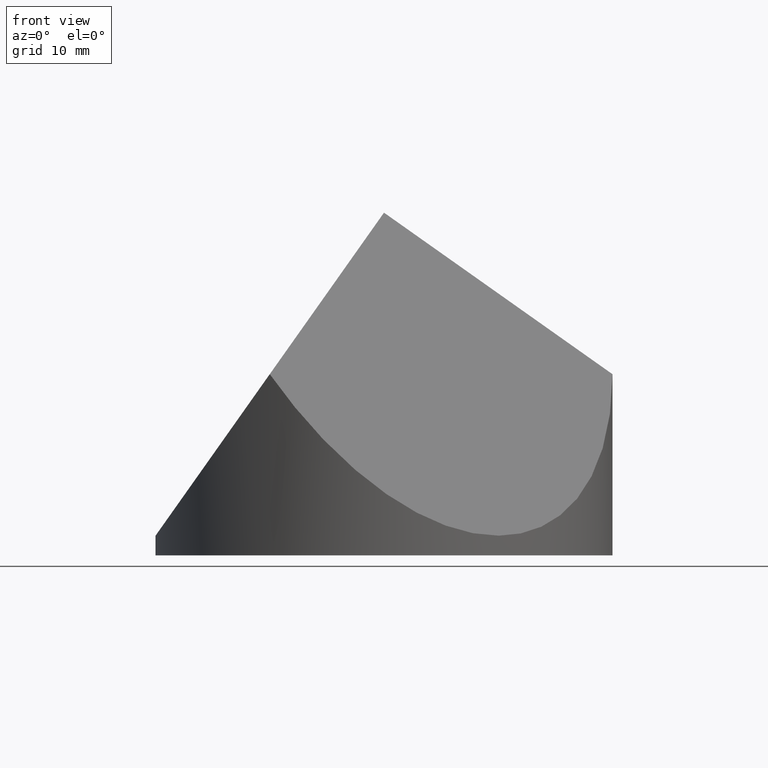
[diagram: clean part render]
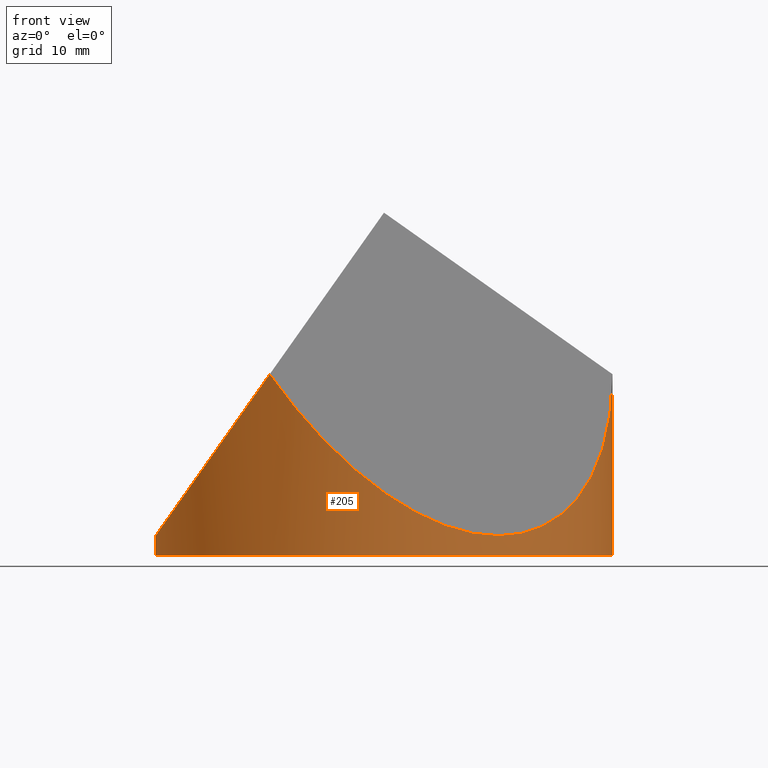
[diagram: same view with one face highlighted and labeled with its STEP entity id]
A machine part, front view. The second image highlights one B-rep face of the part: STEP entity #205.
In plain terms, the highlighted cylindrical surface (partial cylindrical patch) has radius 19 mm, axis along (-0, -0, -1).
Its self-contained STEP definition (entity closure, byte-faithful):
#11 = EDGE_CURVE ( 'NONE', #134, #50, #34, .T. ) ;
#15 = CARTESIAN_POINT ( 'NONE',  ( 19.00000000000001400, 5.354801039138735000E-032, 15.06776144854982000 ) ) ;
#21 = ORIENTED_EDGE ( 'NONE', *, *, #256, .T. ) ;
#24 = CARTESIAN_POINT ( 'NONE',  ( -19.00000000000000400, -6.954482671904324700, 1.635522897099544300 ) ) ;
#27 = VECTOR ( 'NONE', #130, 1000.000000000000000 ) ;
#34 = LINE ( 'NONE', #189, #110 ) ;
#35 = CARTESIAN_POINT ( 'NONE',  ( -19.00000000000000000, 0.0000000000000000000, 0.0000000000000000000 ) ) ;
#46 = CARTESIAN_POINT ( 'NONE',  ( -9.500000000000016000, -16.45448267190433000, 15.06776144854975300 ) ) ;
#50 = VERTEX_POINT ( 'NONE', #219 ) ;
#60 = DIRECTION ( 'NONE',  ( -0.0000000000000000000, -0.0000000000000000000, -1.000000000000000000 ) ) ;
#76 = CARTESIAN_POINT ( 'NONE',  ( -15.52275866404783900, -12.97724133595215600, 6.552063436623012800 ) ) ;
#79 =( BOUNDED_CURVE ( )  B_SPLINE_CURVE ( 3, ( #199, #294, #100, #169 ),
 .UNSPECIFIED., .F., .F. ) 
 B_SPLINE_CURVE_WITH_KNOTS ( ( 4, 4 ),
 ( 5.235987755982986200, 7.330382858376182800 ),
 .UNSPECIFIED. ) 
 CURVE ( )  GEOMETRIC_REPRESENTATION_ITEM ( )  RATIONAL_B_SPLINE_CURVE ( ( 1.000000000000000000, 0.6666666666666663000, 0.6666666666666663000, 1.000000000000000000 ) ) 
 REPRESENTATION_ITEM ( '' )  );
#84 = ORIENTED_EDGE ( 'NONE', *, *, #282, .T. ) ;
#89 = CARTESIAN_POINT ( 'NONE',  ( -19.00000000000000000, 0.0000000000000000000, 1.635522897099547900 ) ) ;
#95 = VERTEX_POINT ( 'NONE', #89 ) ;
#97 = EDGE_CURVE ( 'NONE', #95, #123, #269, .T. ) ;
#100 = CARTESIAN_POINT ( 'NONE',  ( 4.749999999999993800, -24.68172400785652300, -5.080596378625580600 ) ) ;
#103 = ORIENTED_EDGE ( 'NONE', *, *, #97, .T. ) ;
#106 = AXIS2_PLACEMENT_3D ( 'NONE', #196, #172, #200 ) ;
#110 = VECTOR ( 'NONE', #60, 1000.000000000000000 ) ;
#116 = CARTESIAN_POINT ( 'NONE',  ( -19.00000000000000000, 0.0000000000000000000, 1.635522897099547900 ) ) ;
#123 = VERTEX_POINT ( 'NONE', #35 ) ;
#127 = CIRCLE ( 'NONE', #106, 19.00000000000000000 ) ;
#130 = DIRECTION ( 'NONE',  ( -0.0000000000000000000, -0.0000000000000000000, -1.000000000000000000 ) ) ;
#134 = VERTEX_POINT ( 'NONE', #15 ) ;
#145 = DIRECTION ( 'NONE',  ( -1.000000000000000000, 0.0000000000000000000, 0.0000000000000000000 ) ) ;
#169 = CARTESIAN_POINT ( 'NONE',  ( -9.500000000000016000, -16.45448267190433000, 15.06776144854975300 ) ) ;
#172 = DIRECTION ( 'NONE',  ( 0.0000000000000000000, 0.0000000000000000000, 1.000000000000000000 ) ) ;
#184 =( BOUNDED_CURVE ( )  B_SPLINE_CURVE ( 3, ( #46, #76, #24, #116 ),
 .UNSPECIFIED., .F., .T. ) 
 B_SPLINE_CURVE_WITH_KNOTS ( ( 4, 4 ),
 ( 5.235987755982989700, 6.283185307179586200 ),
 .UNSPECIFIED. ) 
 CURVE ( )  GEOMETRIC_REPRESENTATION_ITEM ( )  RATIONAL_B_SPLINE_CURVE ( ( 1.000000000000000000, 0.9106836025229592100, 0.9106836025229592100, 1.000000000000000000 ) ) 
 REPRESENTATION_ITEM ( '' )  );
#189 = CARTESIAN_POINT ( 'NONE',  ( 19.00000000000000000, 2.326828918379970600E-015, 28.50000000000000000 ) ) ;
#195 = ORIENTED_EDGE ( 'NONE', *, *, #242, .T. ) ;
#196 = CARTESIAN_POINT ( 'NONE',  ( 0.0000000000000000000, 0.0000000000000000000, 0.0000000000000000000 ) ) ;
#199 = CARTESIAN_POINT ( 'NONE',  ( 19.00000000000001400, 5.354801039138735000E-032, 15.06776144854982000 ) ) ;
#200 = DIRECTION ( 'NONE',  ( 1.000000000000000000, 0.0000000000000000000, 0.0000000000000000000 ) ) ;
#203 = ORIENTED_EDGE ( 'NONE', *, *, #11, .F. ) ;
#205 = ADVANCED_FACE ( 'NONE', ( #214 ), #245, .T. ) ;
#214 = FACE_OUTER_BOUND ( 'NONE', #274, .T. ) ;
#219 = CARTESIAN_POINT ( 'NONE',  ( 19.00000000000000000, 2.326828918379970600E-015, 0.0000000000000000000 ) ) ;
#221 = CARTESIAN_POINT ( 'NONE',  ( -19.00000000000000000, 0.0000000000000000000, 28.50000000000000000 ) ) ;
#240 = AXIS2_PLACEMENT_3D ( 'NONE', #298, #254, #145 ) ;
#242 = EDGE_CURVE ( 'NONE', #134, #264, #79, .T. ) ;
#245 = CYLINDRICAL_SURFACE ( 'NONE', #240, 19.00000000000000000 ) ;
#254 = DIRECTION ( 'NONE',  ( -0.0000000000000000000, -0.0000000000000000000, -1.000000000000000000 ) ) ;
#256 = EDGE_CURVE ( 'NONE', #264, #95, #184, .T. ) ;
#264 = VERTEX_POINT ( 'NONE', #293 ) ;
#269 = LINE ( 'NONE', #221, #27 ) ;
#274 = EDGE_LOOP ( 'NONE', ( #203, #195, #21, #103, #84 ) ) ;
#282 = EDGE_CURVE ( 'NONE', #123, #50, #127, .T. ) ;
#293 = CARTESIAN_POINT ( 'NONE',  ( -9.500000000000016000, -16.45448267190433000, 15.06776144854975300 ) ) ;
#294 = CARTESIAN_POINT ( 'NONE',  ( 19.00000000000001400, -16.45448267190434400, -5.080596378625531700 ) ) ;
#298 = CARTESIAN_POINT ( 'NONE',  ( 0.0000000000000000000, 0.0000000000000000000, 28.50000000000000000 ) ) ;